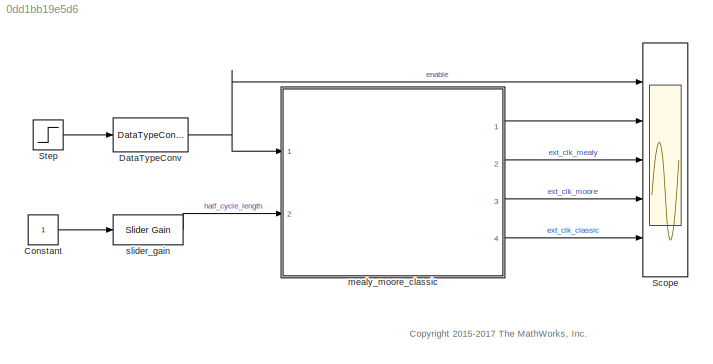
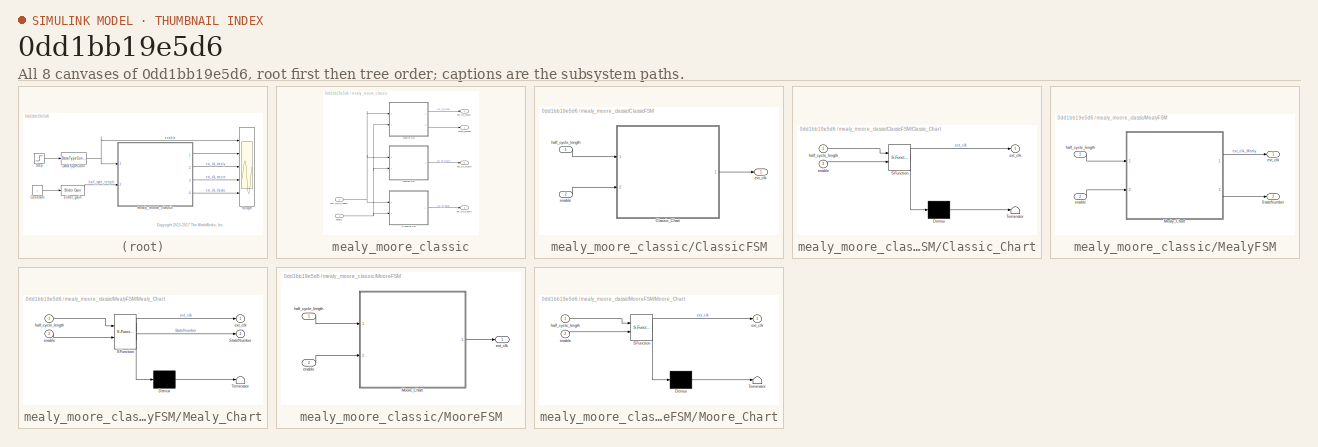
[diagram: thumbnail index - all 8 canvases of the model, root first then tree order]
MODEL slx_0dd1bb19e5d6
KIND model
CONFIG AbsTol = auto
CONFIG EnableMultiTasking = off
CONFIG FixedStep = 1
CONFIG MaxStep = auto
CONFIG MinStep = auto
CONFIG RelTol = 1e-3
CONFIG SampleTimeConstraint = Unconstrained
CONFIG Solver = FixedStepDiscrete
CONFIG SolverName = FixedStepDiscrete
CONFIG StartTime = 0.0
CONFIG StopTime = 2200
BLOCK [Constant] Constant
  OutDataTypeStr = int16
  SampleTime = 1
BLOCK [DataTypeConversion] DataTypeConv
  OutDataTypeStr = boolean
  RndMeth = Floor
  SaturateOnIntegerOverflow = off
BLOCK [Scope] Scope
  Floating = off
  NumInputPorts = 5
  Ports = [5]
  ScopeSpecificationString = Simulink.scopes.TimeScopeBlockCfg('CurrentConfiguration', extmgr.ConfigurationSet(extmgr.Configuration('Core','General UI',true),extmgr.Configuration('Core','Source UI',true),extmgr.Configuration('Sources','WiredSimulink',true,'DataLoggingVariableName','ScopeData1','DataLoggingSaveFormat','Array','DataLoggingDecimation','1','DataLoggingDecimateData',true),extmgr.Configuration('Visuals','Time Domai...<+3022ch>
BLOCK [Step] Step
  SampleTime = 1
  Time = 25
BLOCK [SubSystem] mealy_moore_classic
  Ports = [2, 4]
  RequestExecContextInheritance = off
BLOCK [SubSystem] mealy_moore_classic/ClassicFSM
  Ports = [2, 1]
  RequestExecContextInheritance = off
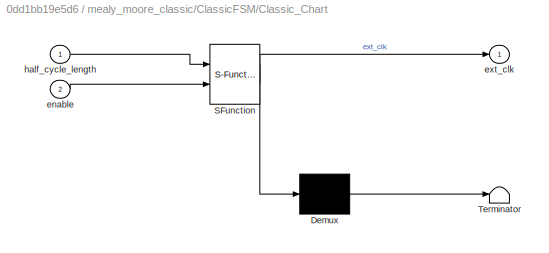
BLOCK [SubSystem] mealy_moore_classic/ClassicFSM/Classic_Chart
  ErrorFcn = Stateflow.Translate.translate
  PermitHierarchicalResolution = ExplicitOnly
  Ports = [2, 1]
  RequestExecContextInheritance = off
  SFBlockType = Chart
  TreatAsAtomicUnit = on
BLOCK [Demux] mealy_moore_classic/ClassicFSM/Classic_Chart/ Demux 
  Outputs = 1
  Ports = [1, 1]
BLOCK [S-Function] mealy_moore_classic/ClassicFSM/Classic_Chart/ SFunction 
  EnableBusSupport = off
  FunctionName = sf_sfun
  PortCounts = [2 2]
  Ports = [2, 2]
  SFcnIsStateOwnerBlock = off
  SFunctionDeploymentMode = off
  Tag = Stateflow S-Function 1
BLOCK [Terminator] mealy_moore_classic/ClassicFSM/Classic_Chart/ Terminator 
BLOCK [Inport] mealy_moore_classic/ClassicFSM/Classic_Chart/enable
  IconDisplay = Port number
  Port = 2
BLOCK [Outport] mealy_moore_classic/ClassicFSM/Classic_Chart/ext_clk
  IconDisplay = Port number
BLOCK [Inport] mealy_moore_classic/ClassicFSM/Classic_Chart/half_cycle_length
  IconDisplay = Port number
BLOCK [Inport] mealy_moore_classic/ClassicFSM/enable
  IconDisplay = Port number
  Port = 2
BLOCK [Outport] mealy_moore_classic/ClassicFSM/ext_clk
  IconDisplay = Port number
BLOCK [Inport] mealy_moore_classic/ClassicFSM/half_cycle_length
  IconDisplay = Port number
BLOCK [SubSystem] mealy_moore_classic/MealyFSM
  Ports = [2, 2]
  RequestExecContextInheritance = off
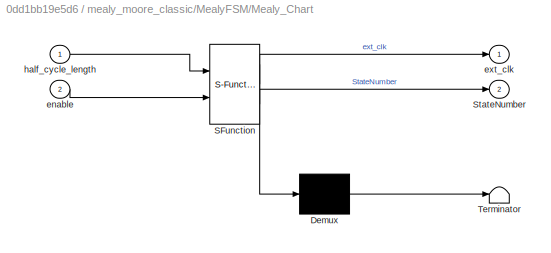
BLOCK [SubSystem] mealy_moore_classic/MealyFSM/Mealy_Chart
  ErrorFcn = Stateflow.Translate.translate
  PermitHierarchicalResolution = ExplicitOnly
  Ports = [2, 2]
  RequestExecContextInheritance = off
  SFBlockType = Chart
  TreatAsAtomicUnit = on
BLOCK [Demux] mealy_moore_classic/MealyFSM/Mealy_Chart/ Demux 
  Outputs = 1
  Ports = [1, 1]
BLOCK [S-Function] mealy_moore_classic/MealyFSM/Mealy_Chart/ SFunction 
  EnableBusSupport = off
  FunctionName = sf_sfun
  PortCounts = [2 3]
  Ports = [2, 3]
  SFcnIsStateOwnerBlock = off
  SFunctionDeploymentMode = off
  Tag = Stateflow S-Function 2
BLOCK [Terminator] mealy_moore_classic/MealyFSM/Mealy_Chart/ Terminator 
BLOCK [Outport] mealy_moore_classic/MealyFSM/Mealy_Chart/StateNumber
  IconDisplay = Port number
  Port = 2
BLOCK [Inport] mealy_moore_classic/MealyFSM/Mealy_Chart/enable
  IconDisplay = Port number
  Port = 2
BLOCK [Outport] mealy_moore_classic/MealyFSM/Mealy_Chart/ext_clk
  IconDisplay = Port number
BLOCK [Inport] mealy_moore_classic/MealyFSM/Mealy_Chart/half_cycle_length
  IconDisplay = Port number
BLOCK [Outport] mealy_moore_classic/MealyFSM/StateNumber
  IconDisplay = Port number
  Port = 2
BLOCK [Inport] mealy_moore_classic/MealyFSM/enable
  IconDisplay = Port number
  Port = 2
BLOCK [Outport] mealy_moore_classic/MealyFSM/ext_clk
  IconDisplay = Port number
BLOCK [Inport] mealy_moore_classic/MealyFSM/half_cycle_length
  IconDisplay = Port number
BLOCK [SubSystem] mealy_moore_classic/MooreFSM
  Ports = [2, 1]
  RequestExecContextInheritance = off
BLOCK [SubSystem] mealy_moore_classic/MooreFSM/Moore_Chart
  ErrorFcn = Stateflow.Translate.translate
  PermitHierarchicalResolution = ExplicitOnly
  Ports = [2, 1]
  RequestExecContextInheritance = off
  SFBlockType = Chart
  TreatAsAtomicUnit = on
BLOCK [Demux] mealy_moore_classic/MooreFSM/Moore_Chart/ Demux 
  Outputs = 1
  Ports = [1, 1]
BLOCK [S-Function] mealy_moore_classic/MooreFSM/Moore_Chart/ SFunction 
  EnableBusSupport = off
  FunctionName = sf_sfun
  PortCounts = [2 2]
  Ports = [2, 2]
  SFcnIsStateOwnerBlock = off
  SFunctionDeploymentMode = off
  Tag = Stateflow S-Function 3
BLOCK [Terminator] mealy_moore_classic/MooreFSM/Moore_Chart/ Terminator 
BLOCK [Inport] mealy_moore_classic/MooreFSM/Moore_Chart/enable
  IconDisplay = Port number
  Port = 2
BLOCK [Outport] mealy_moore_classic/MooreFSM/Moore_Chart/ext_clk
  IconDisplay = Port number
BLOCK [Inport] mealy_moore_classic/MooreFSM/Moore_Chart/half_cycle_length
  IconDisplay = Port number
BLOCK [Inport] mealy_moore_classic/MooreFSM/enable
  IconDisplay = Port number
  Port = 2
BLOCK [Outport] mealy_moore_classic/MooreFSM/ext_clk
  IconDisplay = Port number
BLOCK [Inport] mealy_moore_classic/MooreFSM/half_cycle_length
  IconDisplay = Port number
BLOCK [Inport] mealy_moore_classic/enable
  IconDisplay = Port number
BLOCK [Outport] mealy_moore_classic/ext_clk_classic
  IconDisplay = Port number
  Port = 4
BLOCK [Outport] mealy_moore_classic/ext_clk_mealy
  IconDisplay = Port number
  Port = 2
BLOCK [Outport] mealy_moore_classic/ext_clk_moore
  IconDisplay = Port number
  Port = 3
BLOCK [Inport] mealy_moore_classic/half_cycle_length
  IconDisplay = Port number
  Port = 2
BLOCK [Outport] mealy_moore_classic/state_number
  IconDisplay = Port number
BLOCK [Reference] slider_gain  REF=simulink/Math
Operations/Slider
Gain
  Ports = [1, 1]
  SourceBlock = simulink/Math\nOperations/Slider\nGain
  SourceProductBaseCode = SL
  SourceProductName = Simulink
  SourceType = Slider Gain
ANNOTATION (root): <copyright redacted>
LINE Constant:1 -> slider_gain:1
NET DataTypeConv:1 -> Scope:1, mealy_moore_classic:1
LINE Step:1 -> DataTypeConv:1
LINE mealy_moore_classic/ClassicFSM/Classic_Chart:1 -> mealy_moore_classic/ClassicFSM/ext_clk:1
LINE mealy_moore_classic/ClassicFSM/enable:1 -> mealy_moore_classic/ClassicFSM/Classic_Chart:2
LINE mealy_moore_classic/ClassicFSM/half_cycle_length:1 -> mealy_moore_classic/ClassicFSM/Classic_Chart:1
LINE mealy_moore_classic/ClassicFSM:1 -> mealy_moore_classic/ext_clk_classic:1
LINE mealy_moore_classic/MealyFSM/Mealy_Chart:1 -> mealy_moore_classic/MealyFSM/ext_clk:1
LINE mealy_moore_classic/MealyFSM/Mealy_Chart:2 -> mealy_moore_classic/MealyFSM/StateNumber:1
LINE mealy_moore_classic/MealyFSM/enable:1 -> mealy_moore_classic/MealyFSM/Mealy_Chart:2
LINE mealy_moore_classic/MealyFSM/half_cycle_length:1 -> mealy_moore_classic/MealyFSM/Mealy_Chart:1
LINE mealy_moore_classic/MealyFSM:1 -> mealy_moore_classic/ext_clk_mealy:1
LINE mealy_moore_classic/MealyFSM:2 -> mealy_moore_classic/state_number:1
LINE mealy_moore_classic/MooreFSM/Moore_Chart:1 -> mealy_moore_classic/MooreFSM/ext_clk:1
LINE mealy_moore_classic/MooreFSM/enable:1 -> mealy_moore_classic/MooreFSM/Moore_Chart:2
LINE mealy_moore_classic/MooreFSM/half_cycle_length:1 -> mealy_moore_classic/MooreFSM/Moore_Chart:1
LINE mealy_moore_classic/MooreFSM:1 -> mealy_moore_classic/ext_clk_moore:1
NET mealy_moore_classic/enable:1 -> mealy_moore_classic/ClassicFSM:2, mealy_moore_classic/MealyFSM:2, mealy_moore_classic/MooreFSM:2
NET mealy_moore_classic/half_cycle_length:1 -> mealy_moore_classic/ClassicFSM:1, mealy_moore_classic/MealyFSM:1, mealy_moore_classic/MooreFSM:1
LINE mealy_moore_classic:1 -> Scope:2
LINE mealy_moore_classic:2 -> Scope:3
LINE mealy_moore_classic:3 -> Scope:4
LINE mealy_moore_classic:4 -> Scope:5
LINE slider_gain:1 -> mealy_moore_classic:2
note: NET lines group one-source signal fan-out (src -> all destinations, sorted); 1:1 wires keep LINE
CHART mealy_moore_classic/ClassicFSM/Classic_Chart states=4 transitions=7
  STATE_LABEL '<!DOCTYPE HTML PUBLIC "-//W3C//DTD HTML 4.0//EN" "http://www.w3.org/TR/REC-html40/strict.dtd">\n<html><head><meta name="qrichtext" content="1" /><style type="text/css">\np, li { white-space: pre-wrap; }\n</style></head><body style=" font-family:\'Arial\'; font-size:12px; font-weight:600; font-style:italic;">\n<p style=" margin-top:0px; margin-bottom:0px; margin-left:0px; margin-right:0px; -qt-block-inde...<+390ch>'
  STATE_LABEL 's0'
  STATE_LABEL 'delayTime\nentry: ext_clk = false;'
  STATE_LABEL 'reversOutput\nentry: ext_clk = true;\n'
CHART mealy_moore_classic/MealyFSM/Mealy_Chart states=4 transitions=7
  STATE_LABEL '<!DOCTYPE HTML PUBLIC "-//W3C//DTD HTML 4.0//EN" "http://www.w3.org/TR/REC-html40/strict.dtd">\n<html><head><meta name="qrichtext" content="1" /><style type="text/css">\np, li { white-space: pre-wrap; }\n</style></head><body style=" font-family:\'Arial\'; font-size:12px; font-weight:600; font-style:italic;">\n<p style=" margin-top:0px; margin-bottom:0px; margin-left:0px; margin-right:0px; -qt-block-inde...<+371ch>'
  STATE_LABEL 'idle'
  STATE_LABEL 'delayTime'
  STATE_LABEL 'reversOutput\n'
CHART mealy_moore_classic/MooreFSM/Moore_Chart states=6 transitions=7
  STATE_LABEL '<!DOCTYPE HTML PUBLIC "-//W3C//DTD HTML 4.0//EN" "http://www.w3.org/TR/REC-html40/strict.dtd">\n<html><head><meta name="qrichtext" content="1" /><style type="text/css">\np, li { white-space: pre-wrap; }\n</style></head><body style=" font-family:\'Arial\'; font-size:12px; font-weight:600; font-style:italic;">\n<p style=" margin-top:0px; margin-bottom:0px; margin-left:0px; margin-right:0px; -qt-block-inde...<+507ch>'
  STATE_LABEL 'idle\next_clk = false;\ninternal_cntr = int16(0);\n'
  STATE_LABEL 'delayTime1\next_clk = false;\ninternal_cntr(:) = internal_cntr + 1;\n'
  STATE_LABEL 'reverseOutput2\next_clk = false;\ninternal_cntr(:) = 0;'
  STATE_LABEL 'reverseOutput1\next_clk = true;\ninternal_cntr(:) = 0;'
  STATE_LABEL 'delayTime2\next_clk = true;\ninternal_cntr(:) = internal_cntr + 1;'
